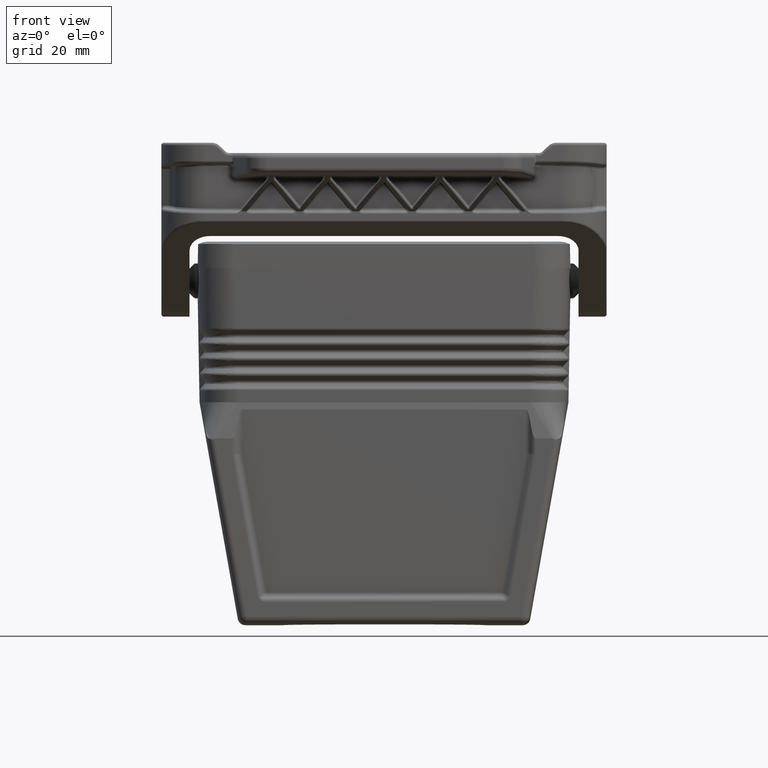
[diagram: clean part render]
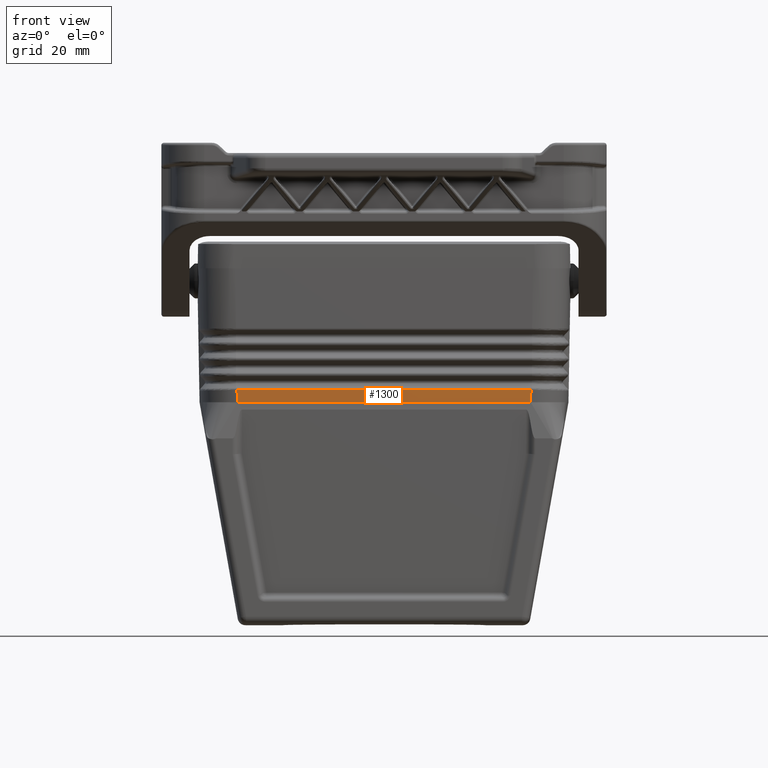
[diagram: same view with one face highlighted and labeled with its STEP entity id]
A machine part, front view. The second image highlights one B-rep face of the part: STEP entity #1300.
In plain terms, the highlighted planar face has unit normal (0, 0.9998, 0.0175).
Its self-contained STEP definition (entity closure, byte-faithful):
#910=CARTESIAN_POINT('',(117.12,46.2185232088232,12.));
#920=DIRECTION('',(-0.999847695156391,-4.6511702705371E-18,
-0.0174524064372835));
#930=DIRECTION('',(-4.65187877420629E-18,1.,0.));
#940=AXIS2_PLACEMENT_3D('',#910,#920,#930);
#950=PLANE('',#940);
#960=CARTESIAN_POINT('',(116.910035772984,25.16326959705,
24.0288425095838));
#970=DIRECTION('',(-6.07348335980753E-18,1.,8.14436721632066E-17));
#980=VECTOR('',#970,1.);
#990=LINE('',#960,#980);
#1000=CARTESIAN_POINT('',(116.910035772984,-1.29487249636355,
24.0288425095838));
#1010=VERTEX_POINT('',#1000);
#1020=CARTESIAN_POINT('',(116.910035772984,56.1148724963635,
24.0288425095838));
#1030=VERTEX_POINT('',#1020);
#1040=EDGE_CURVE('',#1010,#1030,#990,.T.);
#1050=ORIENTED_EDGE('',*,*,#1040,.T.);
#1060=CARTESIAN_POINT('',(116.865634922484,-1.25161910277464,
26.5725655310771));
#1070=DIRECTION('',(-0.0174498847012771,0.0169989250785397,
0.999703224997342));
#1080=VECTOR('',#1070,1.);
#1090=LINE('',#1060,#1080);
#1100=CARTESIAN_POINT('',(116.867767352697,-1.25369642431799,
26.450398686016));
#1110=VERTEX_POINT('',#1100);
#1120=EDGE_CURVE('',#1010,#1110,#1090,.T.);
#1130=ORIENTED_EDGE('',*,*,#1120,.F.);
#1140=CARTESIAN_POINT('',(116.867767352697,25.16326959705,
26.4503986860161));
#1150=DIRECTION('',(-4.65187877420629E-18,1.,0.));
#1160=VECTOR('',#1150,1.);
#1170=LINE('',#1140,#1160);
#1180=CARTESIAN_POINT('',(116.867767352697,56.073696424318,
26.450398686016));
#1190=VERTEX_POINT('',#1180);
#1200=EDGE_CURVE('',#1110,#1190,#1170,.T.);
#1210=ORIENTED_EDGE('',*,*,#1200,.F.);
#1220=CARTESIAN_POINT('',(116.865634922484,56.0716191027746,
26.5725655310771));
#1230=DIRECTION('',(-0.0174498847012771,-0.0169989250785402,
0.999703224997342));
#1240=VECTOR('',#1230,1.);
#1250=LINE('',#1220,#1240);
#1260=EDGE_CURVE('',#1030,#1190,#1250,.T.);
#1270=ORIENTED_EDGE('',*,*,#1260,.T.);
#1280=EDGE_LOOP('',(#1270,#1210,#1130,#1050));
#1290=FACE_OUTER_BOUND('',#1280,.T.);
#1300=ADVANCED_FACE('',(#1290),#950,.F.);